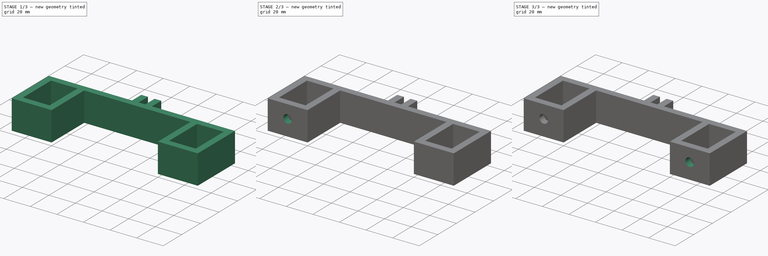
[diagram: build sequence overview — one tinted view per stage of 3, left to right]
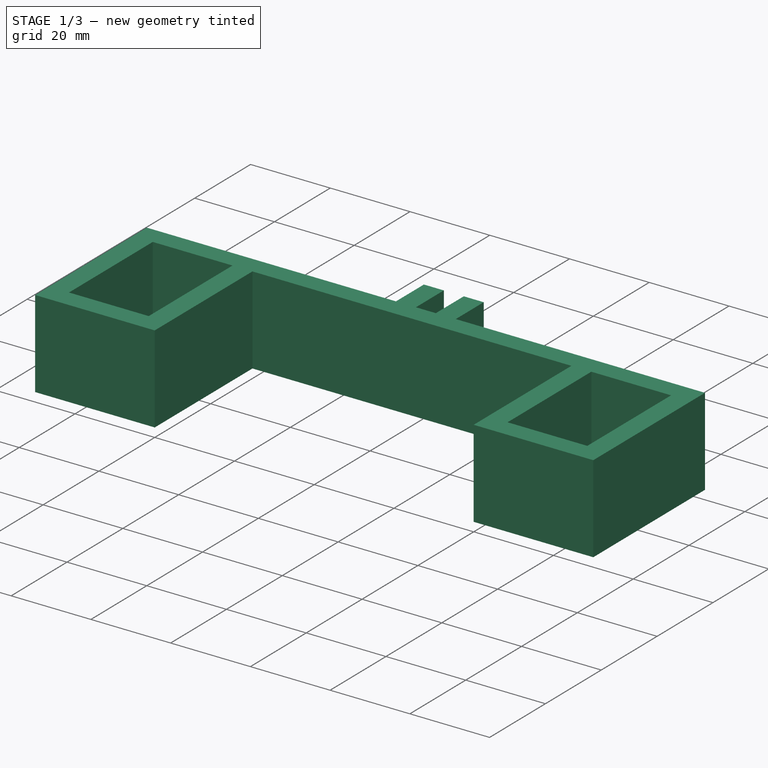
[diagram: stage 1 of 3 — iso view after this stage's code; geometry added in this stage tinted green]
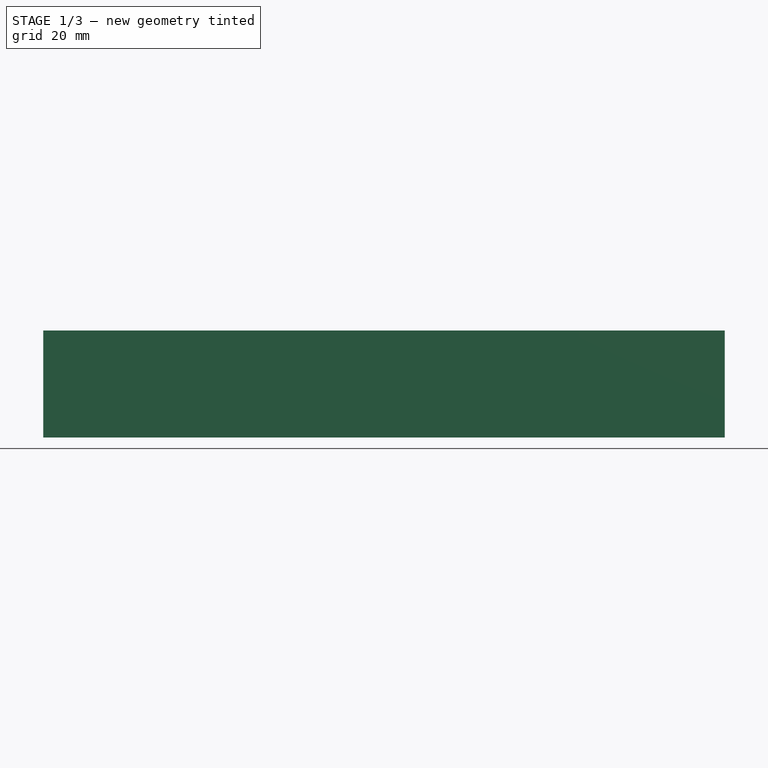
[diagram: stage 1 of 3 — front view after this stage's code; geometry added in this stage tinted green]
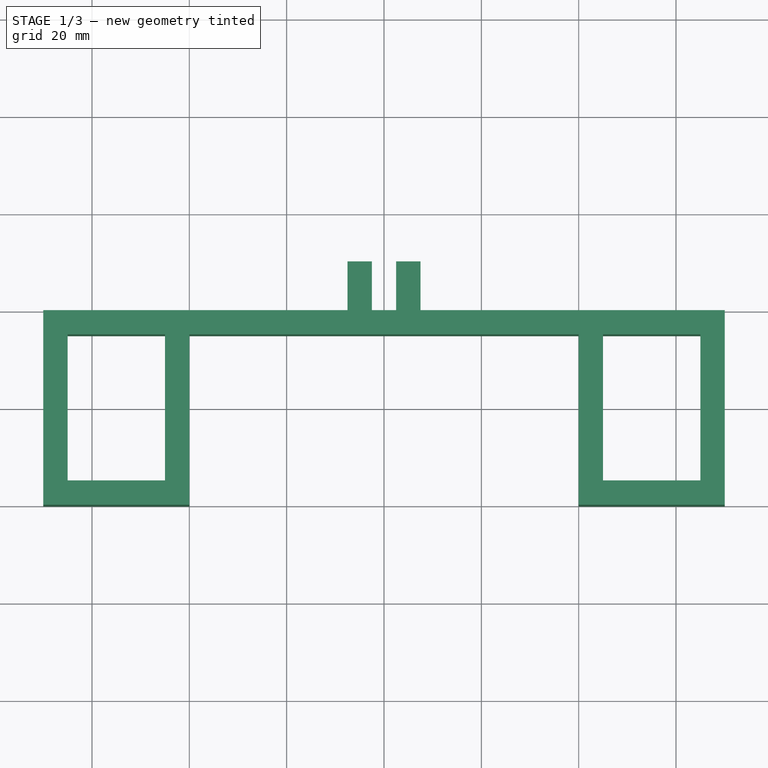
[diagram: stage 1 of 3 — top view after this stage's code; geometry added in this stage tinted green]
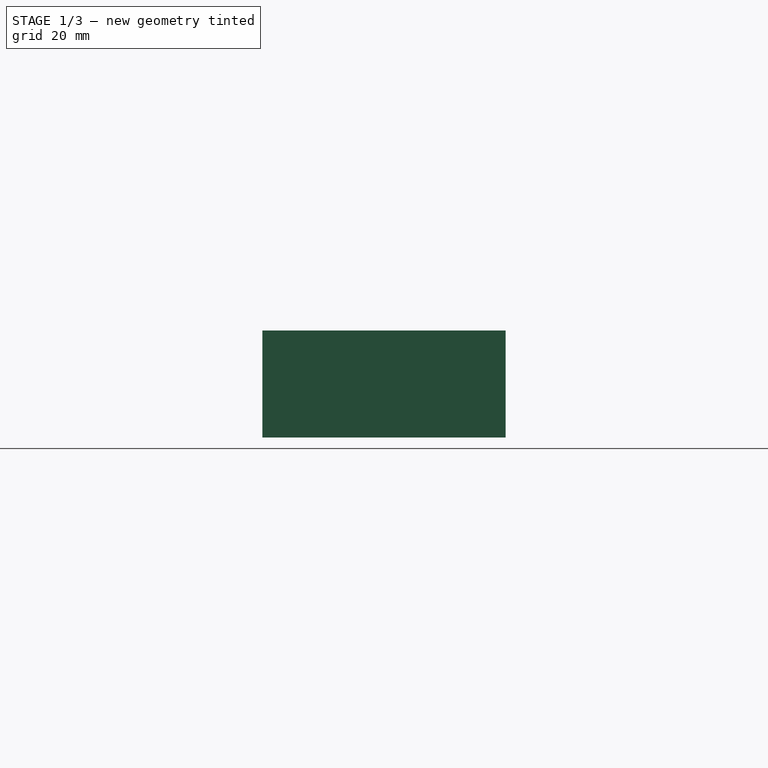
[diagram: stage 1 of 3 — right view after this stage's code; geometry added in this stage tinted green]
FCSTD DOCUMENT  (FreeCAD 0.20R24612 (Git))
Label: bike light gopro mount
License: All rights reserved
LicenseURL: http://en.wikipedia.org/wiki/All_rights_reserved
objects: Sketcher::SketchObject×4, PartDesign::Mirrored×2, PartDesign::Pocket×2, PartDesign::Pad×1, PartDesign::Body×1
note: 13 computed .brp shape members not serialized (recipe doc carries the construction recipe); baked Part::Feature solids carry a one-line shape summary decoded from their .brp

FEATURE [Sketcher::SketchObject] Sketch
  FullyConstrained = false
  MapMode = 5
  Support = -> [XY_Plane]
  sketch-geometry (10):
    g0: LineSegment StartX=-70 StartY=40 StartZ=0 EndX=-70 EndY=0 EndZ=0
    g1: LineSegment StartX=-40 StartY=0 StartZ=0 EndX=-40 EndY=35 EndZ=0
    g2: LineSegment StartX=-45 StartY=35 StartZ=0 EndX=-45 EndY=5 EndZ=0
    g3: LineSegment StartX=-45 StartY=5 StartZ=0 EndX=-65 EndY=5 EndZ=0
    g4: LineSegment StartX=-65 StartY=35 StartZ=0 EndX=-65 EndY=5 EndZ=0
    g5: LineSegment StartX=-65 StartY=35 StartZ=0 EndX=-45 EndY=35 EndZ=0
    g6: LineSegment StartX=-40 StartY=35 StartZ=0 EndX=0 EndY=35 EndZ=0
    g7: LineSegment StartX=-70 StartY=0 StartZ=0 EndX=-40 EndY=0 EndZ=0
    g8: LineSegment StartX=0 StartY=35 StartZ=0 EndX=0 EndY=52.9542 EndZ=0
    g9: LineSegment StartX=0 StartY=40 StartZ=0 EndX=-70 EndY=40 EndZ=0
  constraints (30):
    c: PointOnObject(g0,g-1)
    c: Vertical(g0)
    c: PointOnObject(g1,g-1)
    c: Vertical(g1)
    c: Vertical(g2)
    c: Coincident(g2,g3)
    c: Horizontal(g3)
    c: Vertical(g4)
    c: Coincident(g4,g3)
    c: Coincident(g5,g4)
    c: Coincident(g5,g2)
    c: Horizontal(g5)
    c: Coincident(g6,g1)
    c: PointOnObject(g6,g-2)
    c: Horizontal(g6)
    c: PointOnObject(g8,g-2)
    c: Coincident(g7,g0)
    c: Coincident(g7,g1)
    c: Coincident(g8,g6)
    c: Coincident(g9,g0)
    c: Horizontal(g9)
    c: DistanceX(g7,g7) = 30
    c: DistanceX(g0,g3) = 5
    c: DistanceX(g2,g1) = 5
    c: DistanceY(g4,g0) = 5
    c: DistanceY(g1,g9) = 5
    c: DistanceY(g0,g0) = 40
    c: DistanceY(g0,g3) = 5
    c: DistanceX(g6,g6) = 40
    c: PointOnObject(g9,g8)
FEATURE [PartDesign::Pad] Pad
  Direction = (1,1,1)
  Length = 10
  Length2 = 12
  Midplane = true
  Profile = -> Sketch
  Refine = true
  Type = 4
FEATURE [PartDesign::Mirrored] Mirrored
  BaseFeature = -> Pad
  MirrorPlane = -> Sketch [V_Axis]
  Originals = -> [Pad]
  Overlap = 0
  Refine = true
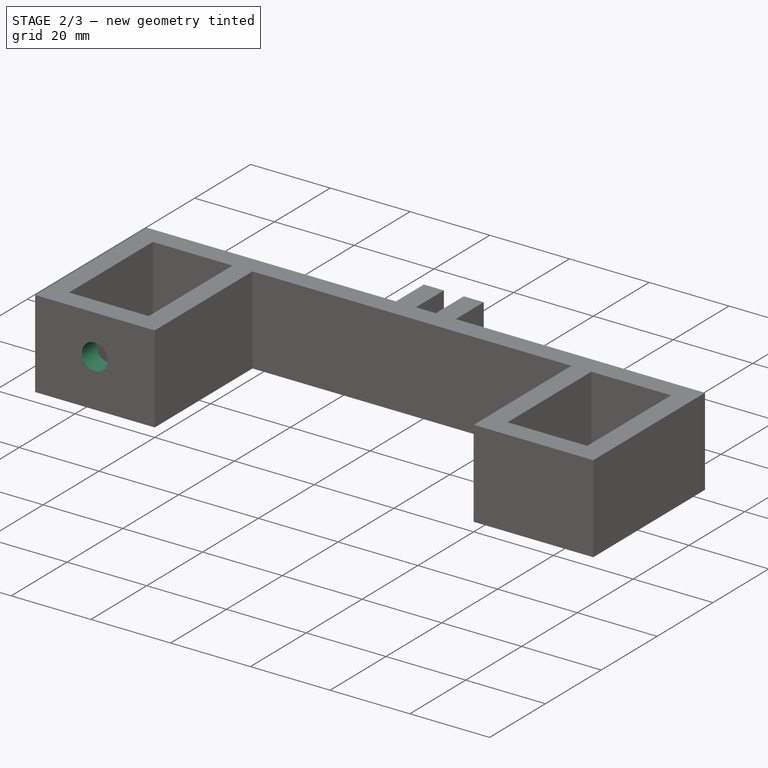
[diagram: stage 2 of 3 — iso view after this stage's code; geometry added in this stage tinted green]
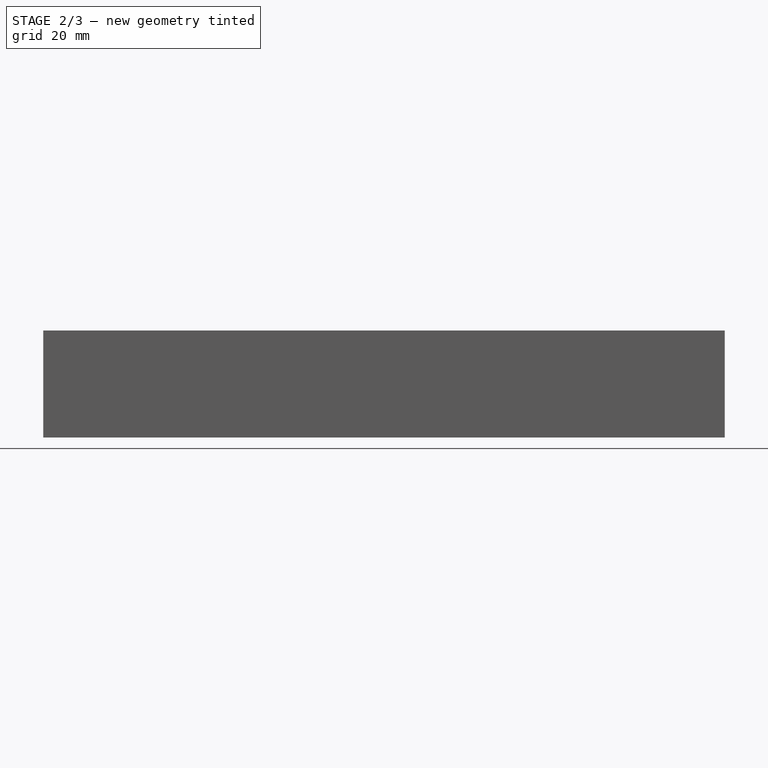
[diagram: stage 2 of 3 — front view after this stage's code; geometry added in this stage tinted green]
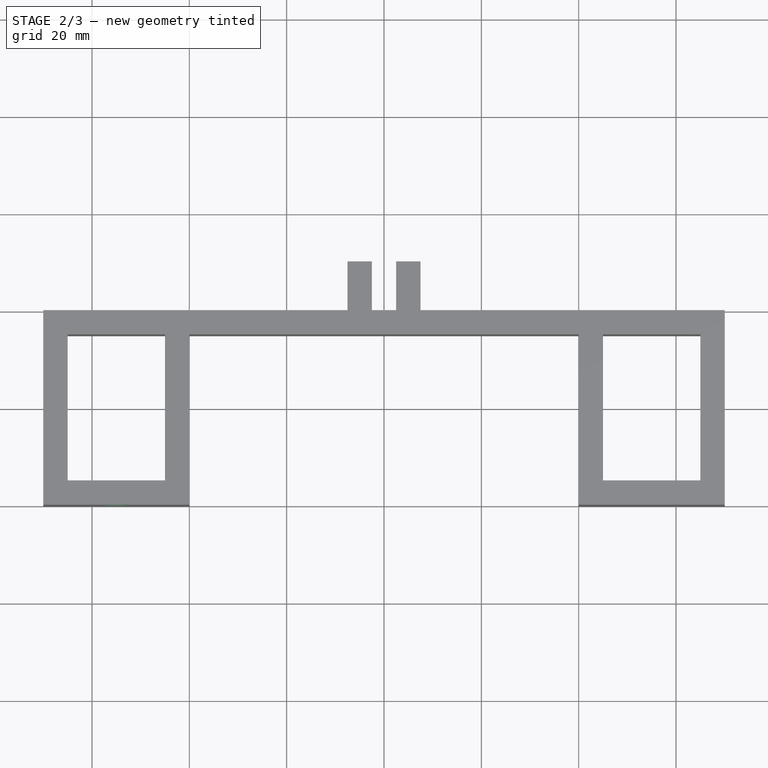
[diagram: stage 2 of 3 — top view after this stage's code; geometry added in this stage tinted green]
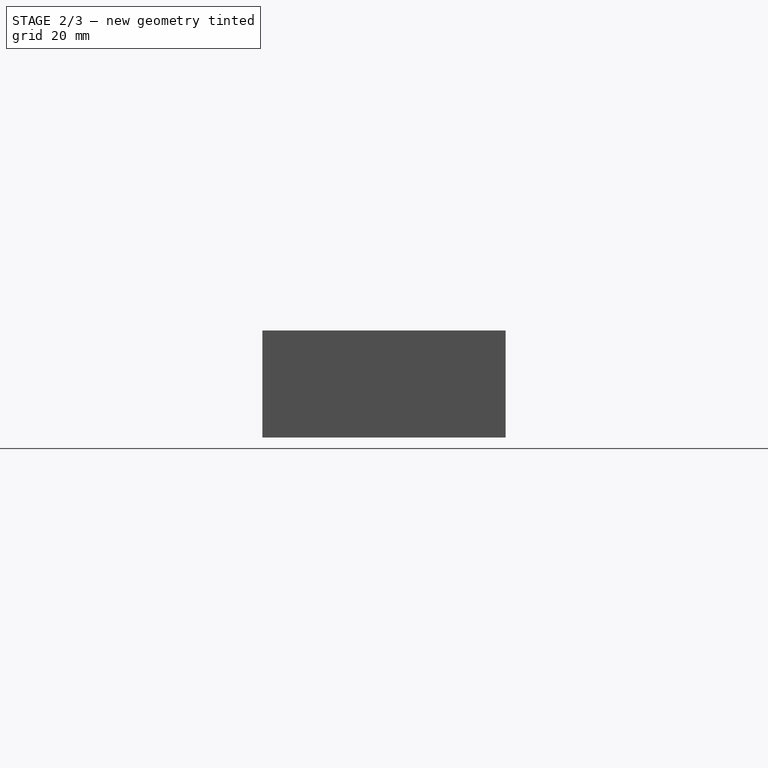
[diagram: stage 2 of 3 — right view after this stage's code; geometry added in this stage tinted green]
FEATURE [Sketcher::SketchObject] Sketch001
  FullyConstrained = false
  MapMode = 5
  Placement = pos=(0,0,0) rot=(1,0,0;1.5708rad)
  Support = -> [XZ_Plane]
  sketch-geometry (1):
    g0: Circle CenterX=-55 CenterY=0 CenterZ=0 NormalX=0 NormalY=0 NormalZ=1 AngleXU=0 Radius=3.24076
  constraints (2):
    c: DistanceX(g0,g-1) = 55
    c: PointOnObject(g0,g-1)
FEATURE [PartDesign::Pocket] Pocket
  BaseFeature = -> Mirrored
  Length = 5
  Length2 = 100
  Profile = -> Sketch001
  Refine = true
  Type = 2
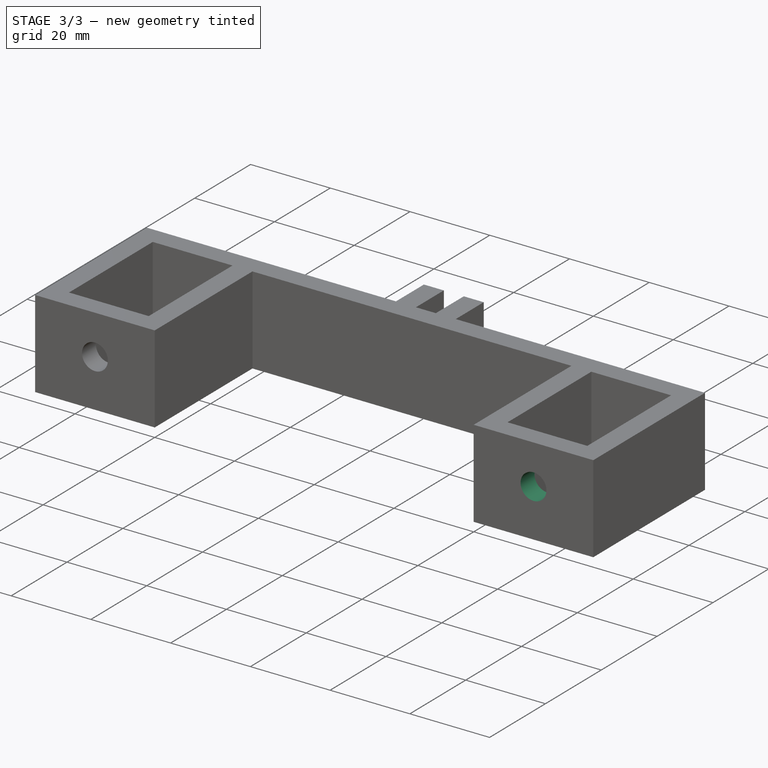
[diagram: stage 3 of 3 — iso view after this stage's code; geometry added in this stage tinted green]
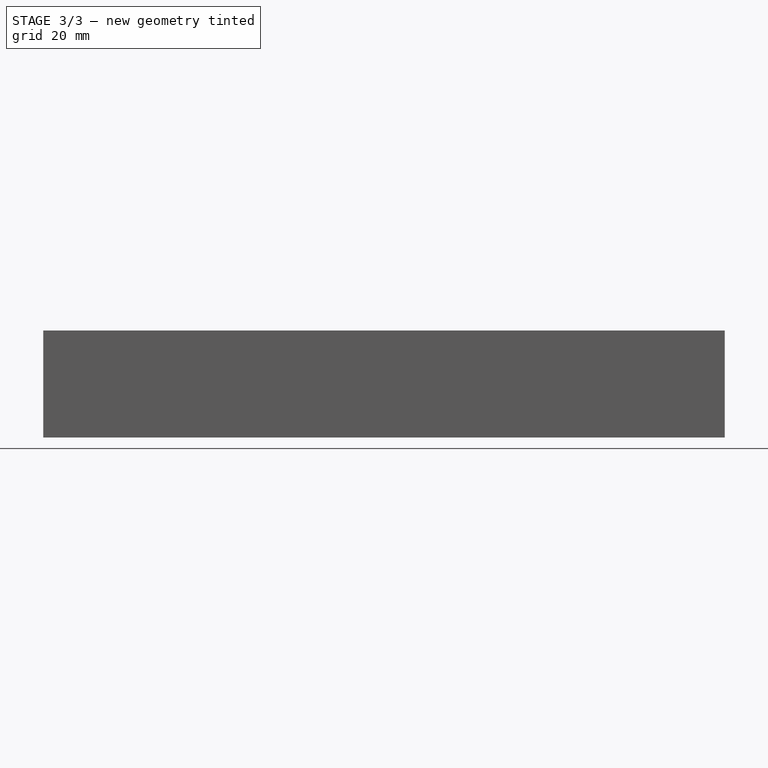
[diagram: stage 3 of 3 — front view after this stage's code; geometry added in this stage tinted green]
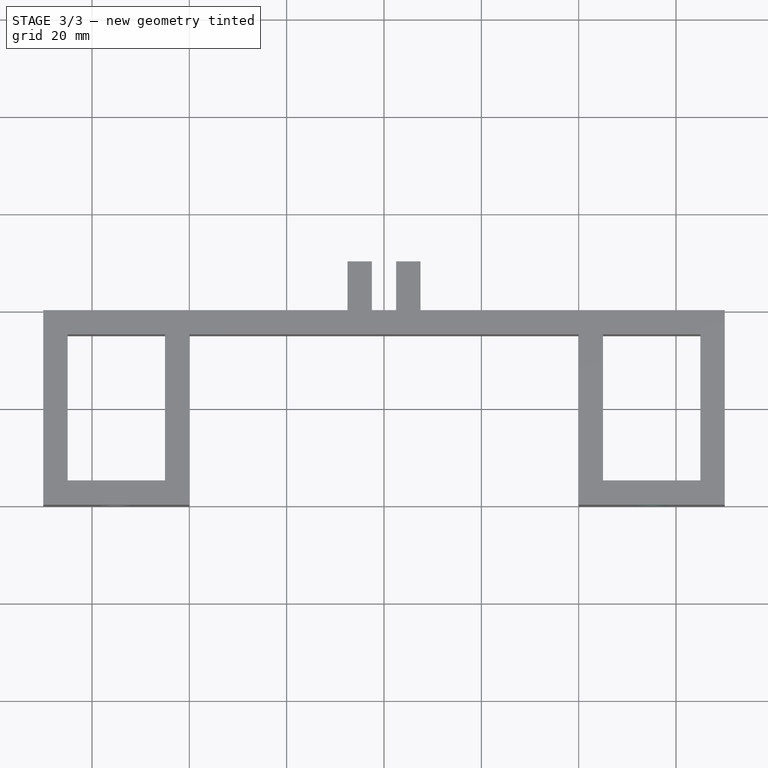
[diagram: stage 3 of 3 — top view after this stage's code; geometry added in this stage tinted green]
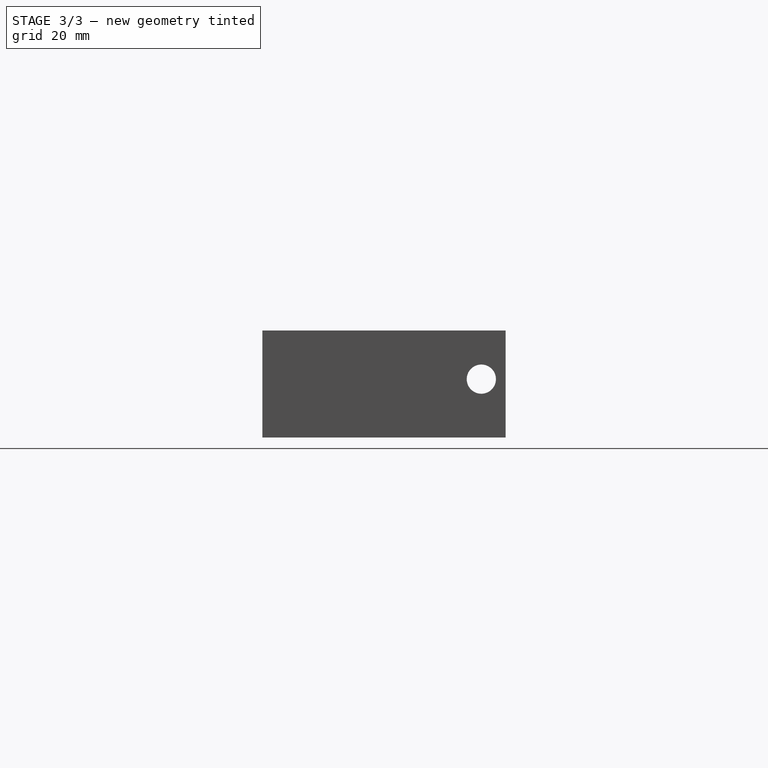
[diagram: stage 3 of 3 — right view after this stage's code; geometry added in this stage tinted green]
FEATURE [PartDesign::Mirrored] Mirrored001
  BaseFeature = -> Pocket
  MirrorPlane = -> Sketch001 [V_Axis]
  Originals = -> [Pocket]
  Overlap = 0
  Refine = true
FEATURE [Sketcher::SketchObject] Sketch002
  FullyConstrained = false
  MapMode = 5
  Placement = pos=(0,0,0) rot=(0.57735,0.57735,0.57735;2.0944rad)
  Support = -> [YZ_Plane]
  sketch-geometry (1):
    g0: Circle CenterX=45 CenterY=0 CenterZ=0 NormalX=0 NormalY=0 NormalZ=1 AngleXU=0 Radius=3
  constraints (3):
    c: DistanceX(g-1,g0) = 45
    c: Radius(g0) = 3
    c: PointOnObject(g0,g-1)
FEATURE [PartDesign::Pocket] Pocket001
  BaseFeature = -> Mirrored001
  Length = 20
  Length2 = 20
  Profile = -> Sketch002
  Refine = true
  Type = 4
FEATURE [Sketcher::SketchObject] Sketch003
  FullyConstrained = false
  MapMode = 5
  Placement = pos=(0,0,0) rot=(0.57735,0.57735,0.57735;2.0944rad)
  Support = -> [YZ_Plane]
  sketch-geometry (4):
    g0: LineSegment StartX=65.7061 StartY=10.3199 StartZ=0 EndX=65.7061 EndY=-11.3855 EndZ=0
    g1: LineSegment StartX=65.7061 StartY=-11.3855 StartZ=0 EndX=43.6123 EndY=-11.3855 EndZ=0
    g2: LineSegment StartX=65.7061 StartY=10.3199 StartZ=0 EndX=43.6123 EndY=10.3199 EndZ=0
    g3: ArcOfCircle CenterX=44.3994 CenterY=-0.532781 CenterZ=0 NormalX=0 NormalY=0 NormalZ=1 AngleXU=0 Radius=10.8812 StartAngle=4.64 EndAngle=7.92638
  constraints (8):
    c: Vertical(g0)
    c: Coincident(g0,g1)
    c: Horizontal(g1)
    c: Coincident(g0,g2)
    c: Horizontal(g2)
    c: Coincident(g3,g1)
    c: Coincident(g3,g2)
    c: Vertical(g1,g2)
FEATURE [PartDesign::Body] Body
  Group = -> [Sketch,Pad,Mirrored,Sketch001,Pocket,Mirrored001,Sketch002,Pocket001,Sketch003]
  Origin = -> Origin
  Tip = -> Pocket001
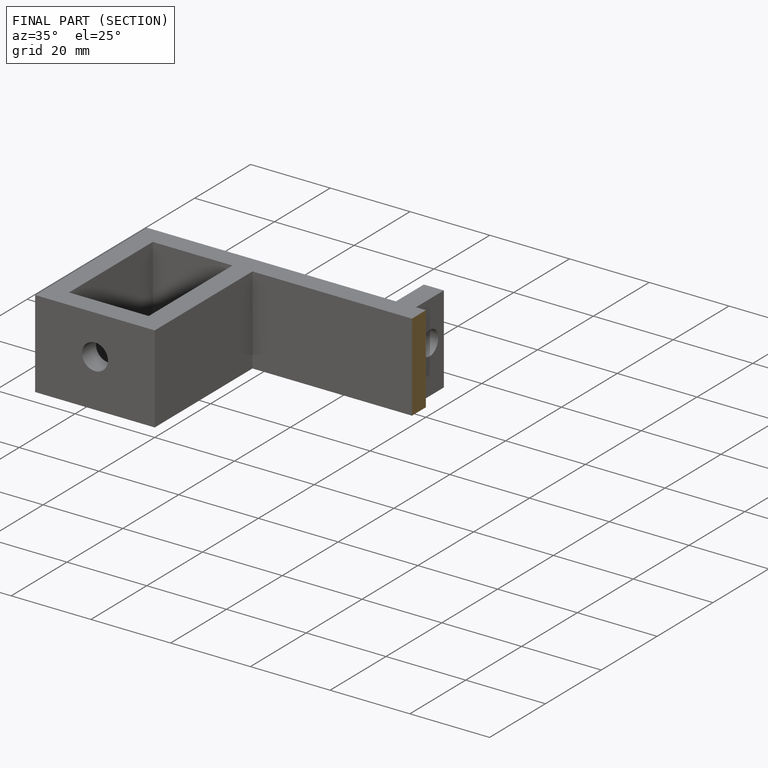
[diagram: finished part — half-section view (interior)]
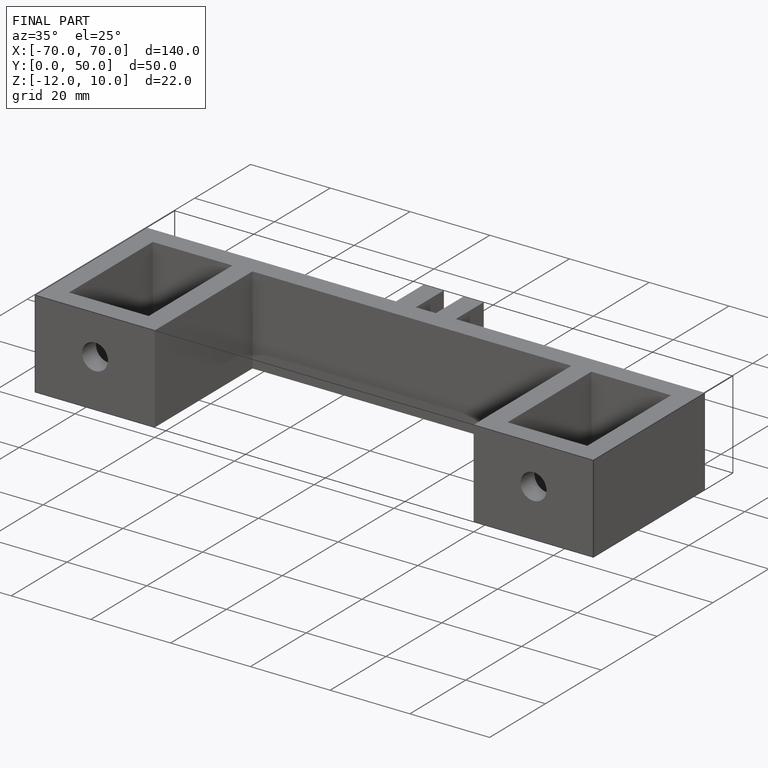
[diagram: finished part — iso view with bounding-box wireframe]
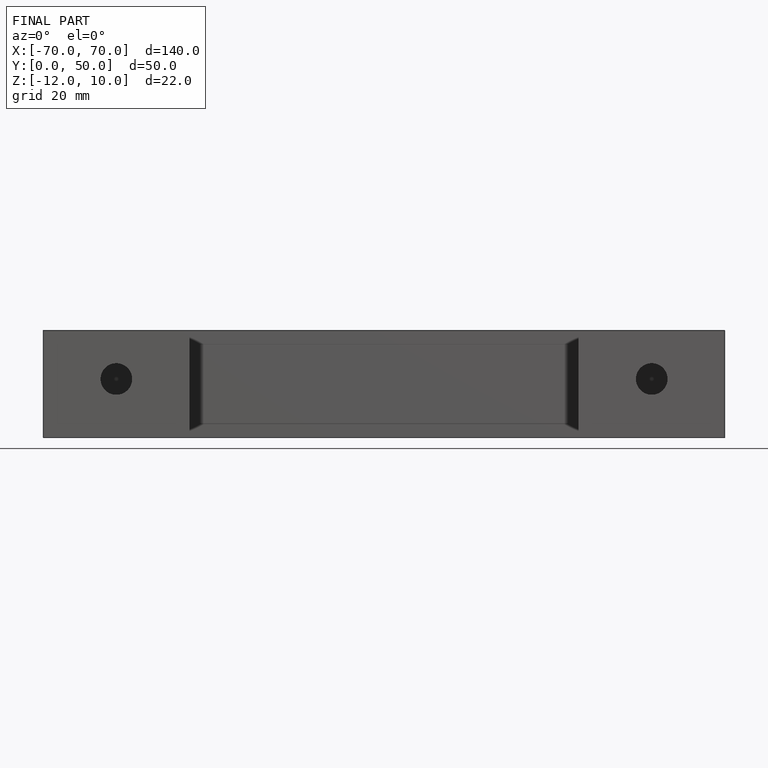
[diagram: finished part — front view with bounding-box wireframe]
